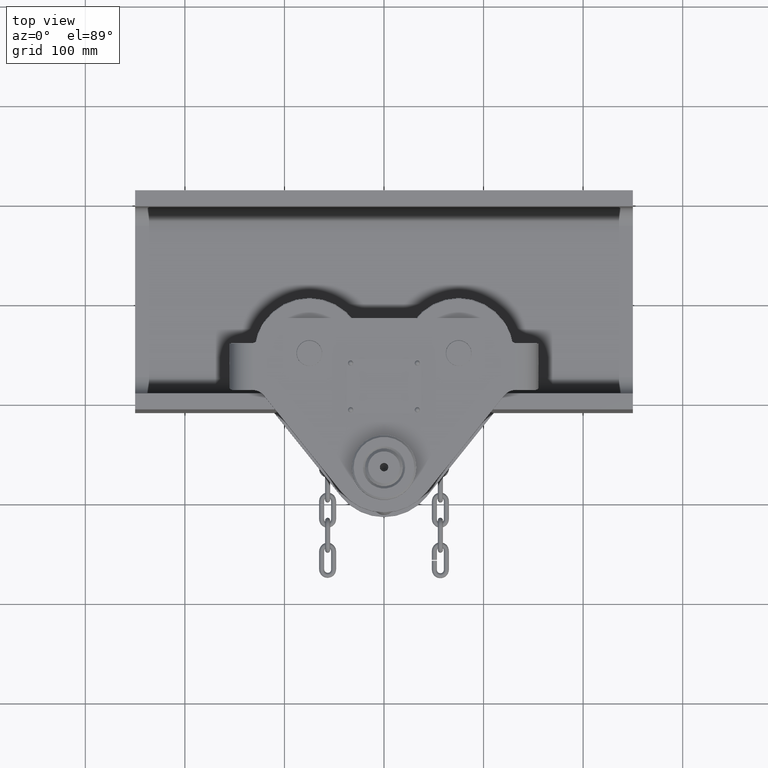
[diagram: clean part render]
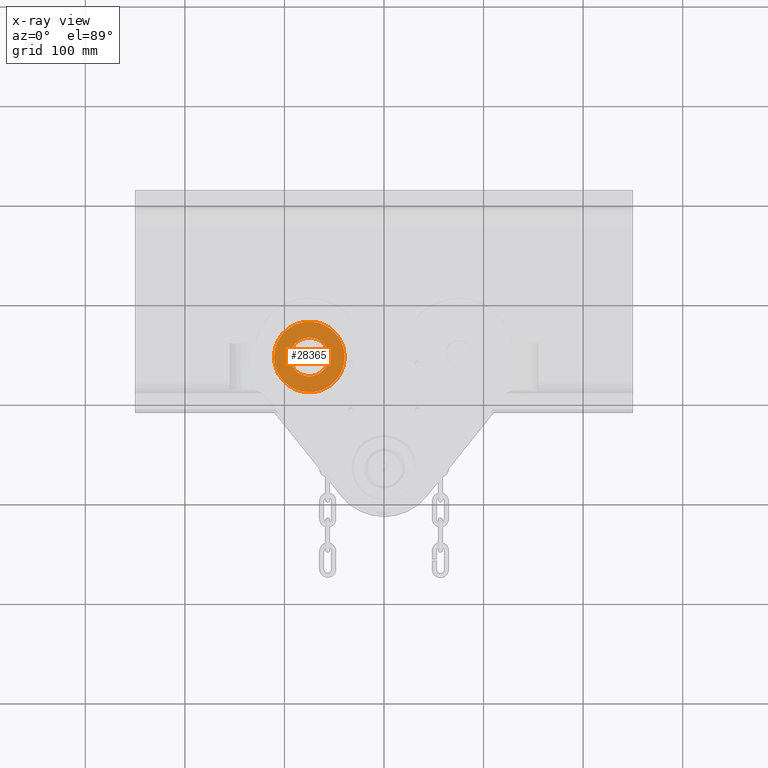
[diagram: x-ray — body ghosted, one internal face saturated and labeled with its STEP entity id]
A machine part, top view, then the same camera in x-ray: the body is ghosted and one INTERNAL B-rep face — a face not visible from any outside direction — is saturated and labeled: STEP entity #28365.
In plain terms, the highlighted planar face has unit normal (-0, -0, -1).
Its self-contained STEP definition (entity closure, byte-faithful):
#2309 = DIRECTION ( 'NONE',  ( 0.1119644761280845500, 0.9937122098904509500, 0.0000000000000000000 ) ) ;
#5674 = CARTESIAN_POINT ( 'NONE',  ( -75.00000000000017100, -53.99999999999985800, -90.49999999999936100 ) ) ;
#6007 = DIRECTION ( 'NONE',  ( -9.034484543767712100E-017, -3.790230130554080600E-031, -1.000000000000000000 ) ) ;
#8076 = FACE_BOUND ( 'NONE', #105461, .T. ) ;
#8292 = ORIENTED_EDGE ( 'NONE', *, *, #49617, .T. ) ;
#9803 = EDGE_CURVE ( 'NONE', #58857, #83654, #13552, .T. ) ;
#13552 = CIRCLE ( 'NONE', #49224, 35.47886694921357500 ) ;
#13731 = DIRECTION ( 'NONE',  ( 0.1119644761280849800, 0.9937122098904507300, 0.0000000000000000000 ) ) ;
#18329 = AXIS2_PLACEMENT_3D ( 'NONE', #72854, #6007, #72504 ) ;
#24216 = DIRECTION ( 'NONE',  ( 0.1119644761280849800, 0.9937122098904507300, 0.0000000000000000000 ) ) ;
#27306 = EDGE_CURVE ( 'NONE', #48338, #37462, #96626, .T. ) ;
#28365 = ADVANCED_FACE ( 'NONE', ( #8076, #72484 ), #80114, .F. ) ;
#29304 = CARTESIAN_POINT ( 'NONE',  ( -78.97237275158688900, -89.25578328051217600, -90.49999999999938900 ) ) ;
#36977 = DIRECTION ( 'NONE',  ( 0.1119644761280845500, 0.9937122098904509500, 0.0000000000000000000 ) ) ;
#37462 = VERTEX_POINT ( 'NONE', #60769 ) ;
#39551 = CARTESIAN_POINT ( 'NONE',  ( -71.02762724841346700, -18.74421671948755400, -90.49999999999938900 ) ) ;
#40739 = CARTESIAN_POINT ( 'NONE',  ( -75.00000000000017100, -53.99999999999985800, -90.49999999999936100 ) ) ;
#42621 = CARTESIAN_POINT ( 'NONE',  ( -75.00000000000017100, -53.99999999999985800, -90.49999999999938900 ) ) ;
#42815 = AXIS2_PLACEMENT_3D ( 'NONE', #77309, #87160, #36977 ) ;
#45614 = CIRCLE ( 'NONE', #90643, 19.50000000000000000 ) ;
#47070 = DIRECTION ( 'NONE',  ( -9.034484543767713400E-017, -4.082971482100940000E-031, -1.000000000000000000 ) ) ;
#48338 = VERTEX_POINT ( 'NONE', #73249 ) ;
#49224 = AXIS2_PLACEMENT_3D ( 'NONE', #42621, #85174, #2309 ) ;
#49617 = EDGE_CURVE ( 'NONE', #37462, #48338, #45614, .T. ) ;
#52110 = ORIENTED_EDGE ( 'NONE', *, *, #27306, .T. ) ;
#54032 = EDGE_CURVE ( 'NONE', #83654, #58857, #54852, .T. ) ;
#54852 = CIRCLE ( 'NONE', #42815, 35.47886694921357500 ) ;
#58857 = VERTEX_POINT ( 'NONE', #29304 ) ;
#60769 = CARTESIAN_POINT ( 'NONE',  ( -77.18330728449782900, -73.37738809286365400, -90.49999999999936100 ) ) ;
#72484 = FACE_OUTER_BOUND ( 'NONE', #76392, .T. ) ;
#72504 = DIRECTION ( 'NONE',  ( 0.1119644761280846300, 0.9937122098904508400, -1.011541329030267200E-017 ) ) ;
#72854 = CARTESIAN_POINT ( 'NONE',  ( -39.74421671948787300, -57.97237275158657600, -90.49999999999936100 ) ) ;
#73249 = CARTESIAN_POINT ( 'NONE',  ( -72.81669271550252600, -34.62261190713607600, -90.49999999999936100 ) ) ;
#74439 = AXIS2_PLACEMENT_3D ( 'NONE', #5674, #47070, #13731 ) ;
#76392 = EDGE_LOOP ( 'NONE', ( #97011, #94147 ) ) ;
#77309 = CARTESIAN_POINT ( 'NONE',  ( -75.00000000000017100, -53.99999999999985800, -90.49999999999938900 ) ) ;
#80114 = PLANE ( 'NONE',  #18329 ) ;
#83654 = VERTEX_POINT ( 'NONE', #39551 ) ;
#85174 = DIRECTION ( 'NONE',  ( -9.034484543767713400E-017, -4.082971482100940000E-031, -1.000000000000000000 ) ) ;
#87160 = DIRECTION ( 'NONE',  ( -9.034484543767713400E-017, -4.082971482100940000E-031, -1.000000000000000000 ) ) ;
#90643 = AXIS2_PLACEMENT_3D ( 'NONE', #40739, #99677, #24216 ) ;
#94147 = ORIENTED_EDGE ( 'NONE', *, *, #9803, .F. ) ;
#96626 = CIRCLE ( 'NONE', #74439, 19.50000000000000000 ) ;
#97011 = ORIENTED_EDGE ( 'NONE', *, *, #54032, .F. ) ;
#99677 = DIRECTION ( 'NONE',  ( -9.034484543767713400E-017, -4.082971482100940000E-031, -1.000000000000000000 ) ) ;
#105461 = EDGE_LOOP ( 'NONE', ( #8292, #52110 ) ) ;